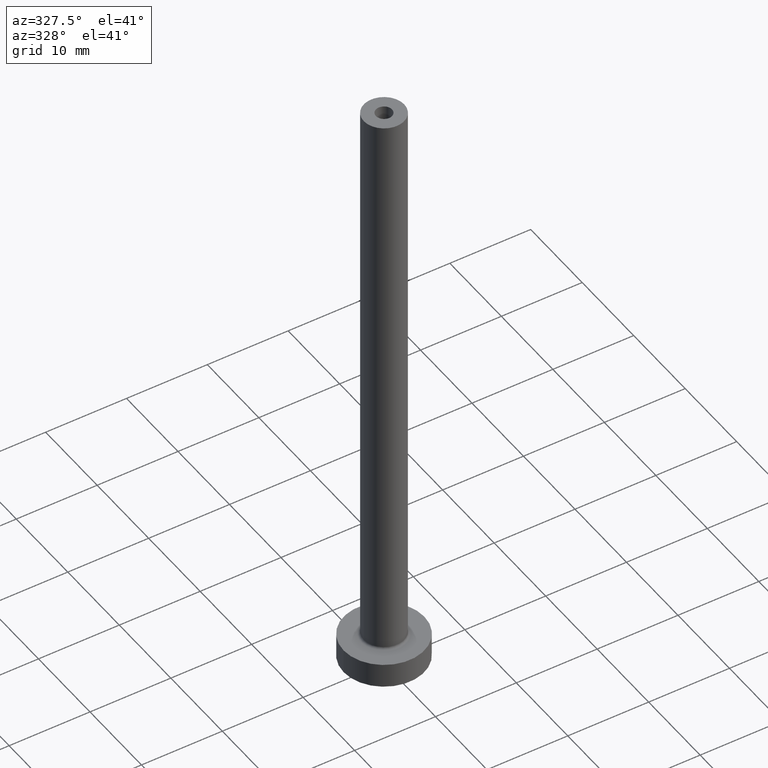
[diagram: clean part render]
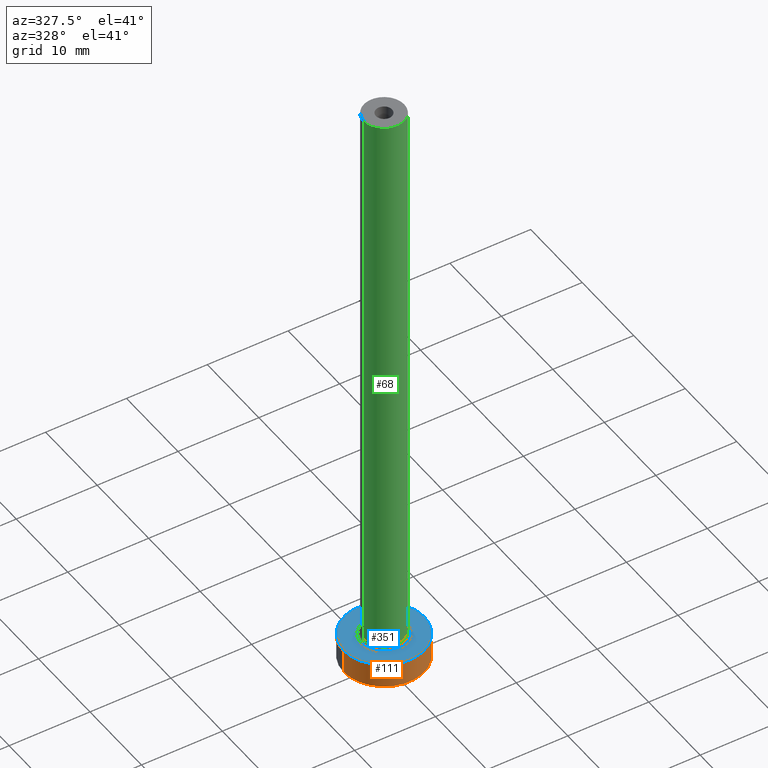
[diagram: same view with three faces highlighted in distinct colors, each labeled with its STEP entity id]
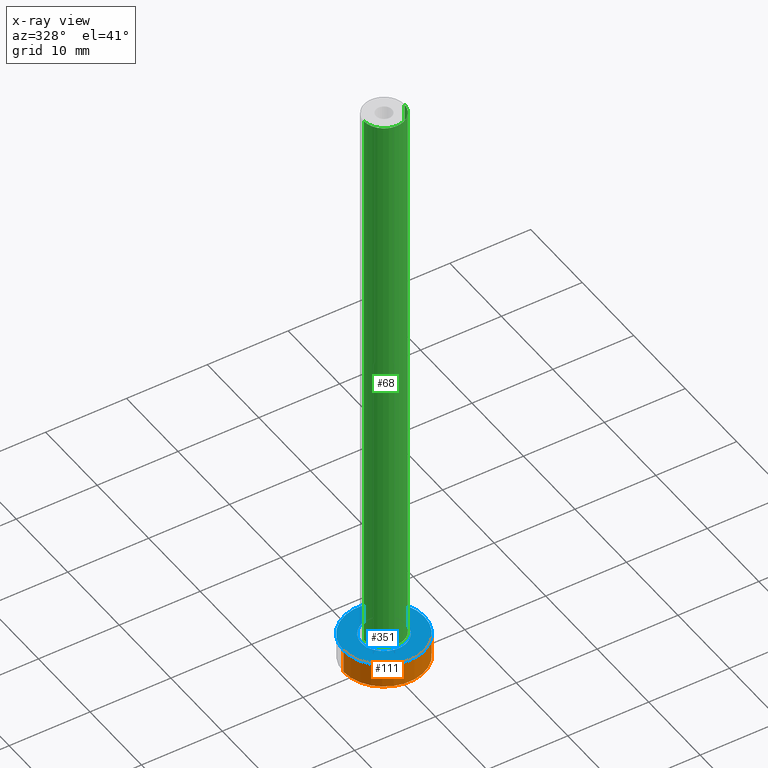
[diagram: x-ray of the same camera — body ghosted, the three highlighted faces saturated]
A machine part, auxiliary view with three faces highlighted in distinct colors.
The next image is the same camera in x-ray (body ghosted, the three faces saturated) — at least one of them is partly hidden behind the body in this view.
Their STEP definitions:

[orange] entity #111 — the highlighted cylindrical surface (partial cylindrical patch) has radius 5 mm, axis along (-0, -0, -1).
#2 = CARTESIAN_POINT ( 'NONE',  ( 5.000000000000000000, 6.123233995736766282E-16, 3.000000000000000000 ) ) ;
#6 = CARTESIAN_POINT ( 'NONE',  ( -5.000000000000000000, 0.000000000000000000, 0.000000000000000000 ) ) ;
#32 = CIRCLE ( 'NONE', #427, 5.000000000000000000 ) ;
#46 = DIRECTION ( 'NONE',  ( 0.000000000000000000, 0.000000000000000000, 1.000000000000000000 ) ) ;
#50 = CARTESIAN_POINT ( 'NONE',  ( 0.000000000000000000, 0.000000000000000000, 0.000000000000000000 ) ) ;
#51 = CIRCLE ( 'NONE', #257, 5.000000000000000000 ) ;
#52 = ORIENTED_EDGE ( 'NONE', *, *, #324, .T. ) ;
#54 = VERTEX_POINT ( 'NONE', #242 ) ;
#59 = EDGE_CURVE ( 'NONE', #413, #54, #348, .T. ) ;
#70 = DIRECTION ( 'NONE',  ( -0.000000000000000000, -0.000000000000000000, -1.000000000000000000 ) ) ;
#94 = VERTEX_POINT ( 'NONE', #105 ) ;
#105 = CARTESIAN_POINT ( 'NONE',  ( -5.000000000000000000, 0.000000000000000000, 3.000000000000000000 ) ) ;
#111 = ADVANCED_FACE ( 'NONE', ( #458 ), #422, .T. ) ;
#119 = DIRECTION ( 'NONE',  ( 0.000000000000000000, 0.000000000000000000, 1.000000000000000000 ) ) ;
#130 = ORIENTED_EDGE ( 'NONE', *, *, #404, .T. ) ;
#131 = VECTOR ( 'NONE', #178, 1000.000000000000000 ) ;
#150 = CARTESIAN_POINT ( 'NONE',  ( -5.000000000000000000, 0.000000000000000000, 3.000000000000000000 ) ) ;
#178 = DIRECTION ( 'NONE',  ( -0.000000000000000000, -0.000000000000000000, -1.000000000000000000 ) ) ;
#186 = EDGE_CURVE ( 'NONE', #94, #413, #51, .T. ) ;
#198 = ORIENTED_EDGE ( 'NONE', *, *, #186, .F. ) ;
#234 = ORIENTED_EDGE ( 'NONE', *, *, #59, .F. ) ;
#242 = CARTESIAN_POINT ( 'NONE',  ( 5.000000000000000000, 6.123233995736766282E-16, 0.000000000000000000 ) ) ;
#244 = DIRECTION ( 'NONE',  ( -0.000000000000000000, -0.000000000000000000, -1.000000000000000000 ) ) ;
#248 = VERTEX_POINT ( 'NONE', #6 ) ;
#255 = DIRECTION ( 'NONE',  ( 1.000000000000000000, 0.000000000000000000, 0.000000000000000000 ) ) ;
#257 = AXIS2_PLACEMENT_3D ( 'NONE', #290, #119, #255 ) ;
#277 = CARTESIAN_POINT ( 'NONE',  ( 0.000000000000000000, 0.000000000000000000, 3.000000000000000000 ) ) ;
#281 = VECTOR ( 'NONE', #70, 1000.000000000000000 ) ;
#290 = CARTESIAN_POINT ( 'NONE',  ( 0.000000000000000000, 0.000000000000000000, 3.000000000000000000 ) ) ;
#291 = CARTESIAN_POINT ( 'NONE',  ( 5.000000000000000000, 6.123233995736766282E-16, 3.000000000000000000 ) ) ;
#324 = EDGE_CURVE ( 'NONE', #248, #54, #32, .T. ) ;
#348 = LINE ( 'NONE', #2, #281 ) ;
#401 = AXIS2_PLACEMENT_3D ( 'NONE', #277, #244, #421 ) ;
#404 = EDGE_CURVE ( 'NONE', #94, #248, #408, .T. ) ;
#408 = LINE ( 'NONE', #150, #131 ) ;
#413 = VERTEX_POINT ( 'NONE', #291 ) ;
#419 = EDGE_LOOP ( 'NONE', ( #234, #198, #130, #52 ) ) ;
#421 = DIRECTION ( 'NONE',  ( -1.000000000000000000, 0.000000000000000000, 0.000000000000000000 ) ) ;
#422 = CYLINDRICAL_SURFACE ( 'NONE', #401, 5.000000000000000000 ) ;
#427 = AXIS2_PLACEMENT_3D ( 'NONE', #50, #46, #435 ) ;
#435 = DIRECTION ( 'NONE',  ( 1.000000000000000000, 0.000000000000000000, 0.000000000000000000 ) ) ;
#458 = FACE_OUTER_BOUND ( 'NONE', #419, .T. ) ;

[blue] entity #351 — the highlighted planar face has unit normal (0, 0, 1).
#3 = DIRECTION ( 'NONE',  ( 1.000000000000000000, 0.000000000000000000, -0.000000000000000000 ) ) ;
#11 = DIRECTION ( 'NONE',  ( 0.000000000000000000, 0.000000000000000000, 1.000000000000000000 ) ) ;
#24 = EDGE_CURVE ( 'NONE', #413, #94, #172, .T. ) ;
#51 = CIRCLE ( 'NONE', #257, 5.000000000000000000 ) ;
#73 = AXIS2_PLACEMENT_3D ( 'NONE', #322, #392, #389 ) ;
#79 = DIRECTION ( 'NONE',  ( 1.000000000000000000, 0.000000000000000000, 0.000000000000000000 ) ) ;
#85 = ORIENTED_EDGE ( 'NONE', *, *, #161, .T. ) ;
#88 = FACE_BOUND ( 'NONE', #129, .T. ) ;
#94 = VERTEX_POINT ( 'NONE', #105 ) ;
#97 = ORIENTED_EDGE ( 'NONE', *, *, #24, .T. ) ;
#105 = CARTESIAN_POINT ( 'NONE',  ( -5.000000000000000000, 0.000000000000000000, 3.000000000000000000 ) ) ;
#114 = AXIS2_PLACEMENT_3D ( 'NONE', #183, #144, #246 ) ;
#118 = CARTESIAN_POINT ( 'NONE',  ( 2.799999999999999822, 0.000000000000000000, 2.999999999999998668 ) ) ;
#119 = DIRECTION ( 'NONE',  ( 0.000000000000000000, 0.000000000000000000, 1.000000000000000000 ) ) ;
#123 = PLANE ( 'NONE',  #309 ) ;
#129 = EDGE_LOOP ( 'NONE', ( #85, #454 ) ) ;
#144 = DIRECTION ( 'NONE',  ( 0.000000000000000000, 0.000000000000000000, 1.000000000000000000 ) ) ;
#153 = CIRCLE ( 'NONE', #361, 2.799999999999999822 ) ;
#161 = EDGE_CURVE ( 'NONE', #261, #372, #460, .T. ) ;
#172 = CIRCLE ( 'NONE', #114, 5.000000000000000000 ) ;
#173 = EDGE_CURVE ( 'NONE', #372, #261, #153, .T. ) ;
#183 = CARTESIAN_POINT ( 'NONE',  ( 0.000000000000000000, 0.000000000000000000, 3.000000000000000000 ) ) ;
#186 = EDGE_CURVE ( 'NONE', #94, #413, #51, .T. ) ;
#188 = CARTESIAN_POINT ( 'NONE',  ( 0.000000000000000000, 0.000000000000000000, 3.000000000000000000 ) ) ;
#196 = EDGE_LOOP ( 'NONE', ( #380, #97 ) ) ;
#216 = FACE_OUTER_BOUND ( 'NONE', #196, .T. ) ;
#246 = DIRECTION ( 'NONE',  ( 1.000000000000000000, 0.000000000000000000, 0.000000000000000000 ) ) ;
#255 = DIRECTION ( 'NONE',  ( 1.000000000000000000, 0.000000000000000000, 0.000000000000000000 ) ) ;
#257 = AXIS2_PLACEMENT_3D ( 'NONE', #290, #119, #255 ) ;
#261 = VERTEX_POINT ( 'NONE', #118 ) ;
#290 = CARTESIAN_POINT ( 'NONE',  ( 0.000000000000000000, 0.000000000000000000, 3.000000000000000000 ) ) ;
#291 = CARTESIAN_POINT ( 'NONE',  ( 5.000000000000000000, 6.123233995736766282E-16, 3.000000000000000000 ) ) ;
#297 = CARTESIAN_POINT ( 'NONE',  ( -2.799999999999999822, 3.429011037612589276E-16, 2.999999999999998668 ) ) ;
#309 = AXIS2_PLACEMENT_3D ( 'NONE', #357, #11, #3 ) ;
#322 = CARTESIAN_POINT ( 'NONE',  ( 0.000000000000000000, 0.000000000000000000, 3.000000000000000000 ) ) ;
#351 = ADVANCED_FACE ( 'NONE', ( #88, #216 ), #123, .T. ) ;
#357 = CARTESIAN_POINT ( 'NONE',  ( 0.000000000000000000, 0.000000000000000000, 3.000000000000000000 ) ) ;
#361 = AXIS2_PLACEMENT_3D ( 'NONE', #188, #433, #79 ) ;
#372 = VERTEX_POINT ( 'NONE', #297 ) ;
#380 = ORIENTED_EDGE ( 'NONE', *, *, #186, .T. ) ;
#389 = DIRECTION ( 'NONE',  ( 1.000000000000000000, 0.000000000000000000, 0.000000000000000000 ) ) ;
#392 = DIRECTION ( 'NONE',  ( -0.000000000000000000, -0.000000000000000000, -1.000000000000000000 ) ) ;
#413 = VERTEX_POINT ( 'NONE', #291 ) ;
#433 = DIRECTION ( 'NONE',  ( -0.000000000000000000, -0.000000000000000000, -1.000000000000000000 ) ) ;
#454 = ORIENTED_EDGE ( 'NONE', *, *, #173, .T. ) ;
#460 = CIRCLE ( 'NONE', #73, 2.799999999999999822 ) ;

[green] entity #68 — the highlighted cylindrical surface (edge-blend (fillet) strip) has radius 2.5 mm, axis along (-0, -0, -1).
#1 = DIRECTION ( 'NONE',  ( 0.000000000000000000, 0.000000000000000000, 1.000000000000000000 ) ) ;
#4 = LINE ( 'NONE', #353, #279 ) ;
#19 = ORIENTED_EDGE ( 'NONE', *, *, #82, .F. ) ;
#22 = VERTEX_POINT ( 'NONE', #382 ) ;
#27 = DIRECTION ( 'NONE',  ( -1.000000000000000000, 0.000000000000000000, 0.000000000000000000 ) ) ;
#29 = DIRECTION ( 'NONE',  ( -0.000000000000000000, -0.000000000000000000, -1.000000000000000000 ) ) ;
#44 = VECTOR ( 'NONE', #441, 1000.000000000000000 ) ;
#57 = LINE ( 'NONE', #411, #44 ) ;
#68 = ADVANCED_FACE ( 'NONE', ( #456 ), #429, .T. ) ;
#82 = EDGE_CURVE ( 'NONE', #22, #347, #4, .T. ) ;
#92 = CARTESIAN_POINT ( 'NONE',  ( -2.500000000000000000, 0.000000000000000000, 3.299999999999997158 ) ) ;
#109 = CIRCLE ( 'NONE', #457, 2.500000000000000000 ) ;
#159 = CARTESIAN_POINT ( 'NONE',  ( 2.500000000000000000, 3.061616997868383141E-16, 3.299999999999997158 ) ) ;
#192 = DIRECTION ( 'NONE',  ( 1.000000000000000000, 0.000000000000000000, 0.000000000000000000 ) ) ;
#200 = ORIENTED_EDGE ( 'NONE', *, *, #280, .F. ) ;
#225 = CARTESIAN_POINT ( 'NONE',  ( 0.000000000000000000, 0.000000000000000000, 75.00000000000001421 ) ) ;
#232 = EDGE_LOOP ( 'NONE', ( #19, #200, #440, #398 ) ) ;
#279 = VECTOR ( 'NONE', #29, 1000.000000000000000 ) ;
#280 = EDGE_CURVE ( 'NONE', #340, #22, #369, .T. ) ;
#323 = CARTESIAN_POINT ( 'NONE',  ( -2.500000000000000000, 0.000000000000000000, 75.00000000000001421 ) ) ;
#325 = DIRECTION ( 'NONE',  ( -0.000000000000000000, -0.000000000000000000, -1.000000000000000000 ) ) ;
#335 = DIRECTION ( 'NONE',  ( 0.000000000000000000, 0.000000000000000000, 1.000000000000000000 ) ) ;
#340 = VERTEX_POINT ( 'NONE', #323 ) ;
#347 = VERTEX_POINT ( 'NONE', #159 ) ;
#350 = AXIS2_PLACEMENT_3D ( 'NONE', #358, #325, #27 ) ;
#353 = CARTESIAN_POINT ( 'NONE',  ( 2.500000000000000000, 3.061616997868383141E-16, 75.00000000000001421 ) ) ;
#358 = CARTESIAN_POINT ( 'NONE',  ( 0.000000000000000000, 0.000000000000000000, 75.00000000000001421 ) ) ;
#362 = EDGE_CURVE ( 'NONE', #443, #347, #109, .T. ) ;
#369 = CIRCLE ( 'NONE', #430, 2.500000000000000000 ) ;
#370 = CARTESIAN_POINT ( 'NONE',  ( 0.000000000000000000, 0.000000000000000000, 3.299999999999997158 ) ) ;
#382 = CARTESIAN_POINT ( 'NONE',  ( 2.500000000000000000, 3.061616997868383141E-16, 75.00000000000001421 ) ) ;
#398 = ORIENTED_EDGE ( 'NONE', *, *, #362, .T. ) ;
#402 = DIRECTION ( 'NONE',  ( 1.000000000000000000, 0.000000000000000000, 0.000000000000000000 ) ) ;
#411 = CARTESIAN_POINT ( 'NONE',  ( -2.500000000000000000, 0.000000000000000000, 75.00000000000001421 ) ) ;
#429 = CYLINDRICAL_SURFACE ( 'NONE', #350, 2.500000000000000000 ) ;
#430 = AXIS2_PLACEMENT_3D ( 'NONE', #225, #1, #402 ) ;
#437 = EDGE_CURVE ( 'NONE', #340, #443, #57, .T. ) ;
#440 = ORIENTED_EDGE ( 'NONE', *, *, #437, .T. ) ;
#441 = DIRECTION ( 'NONE',  ( -0.000000000000000000, -0.000000000000000000, -1.000000000000000000 ) ) ;
#443 = VERTEX_POINT ( 'NONE', #92 ) ;
#456 = FACE_OUTER_BOUND ( 'NONE', #232, .T. ) ;
#457 = AXIS2_PLACEMENT_3D ( 'NONE', #370, #335, #192 ) ;